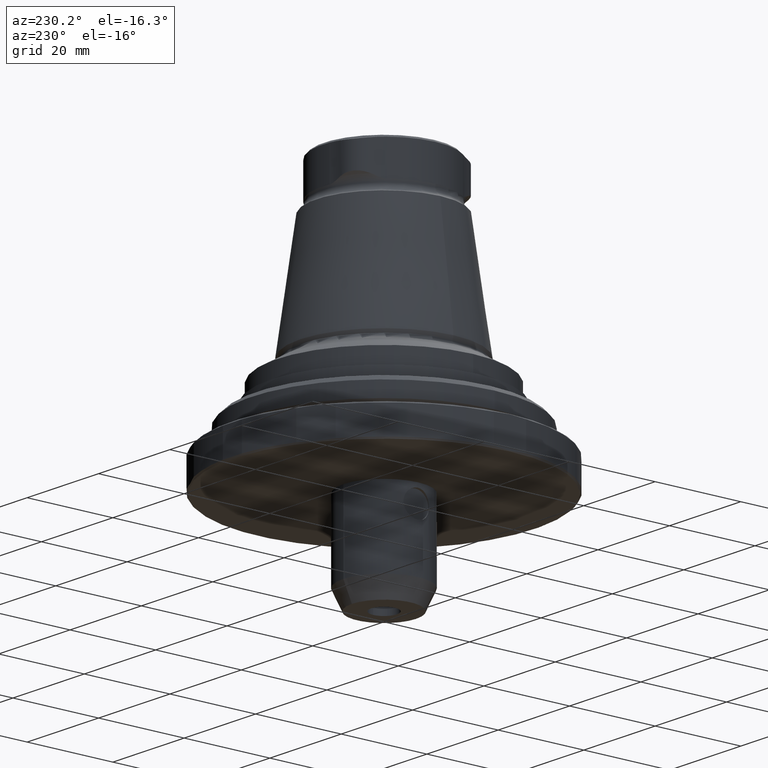
[diagram: clean part render]
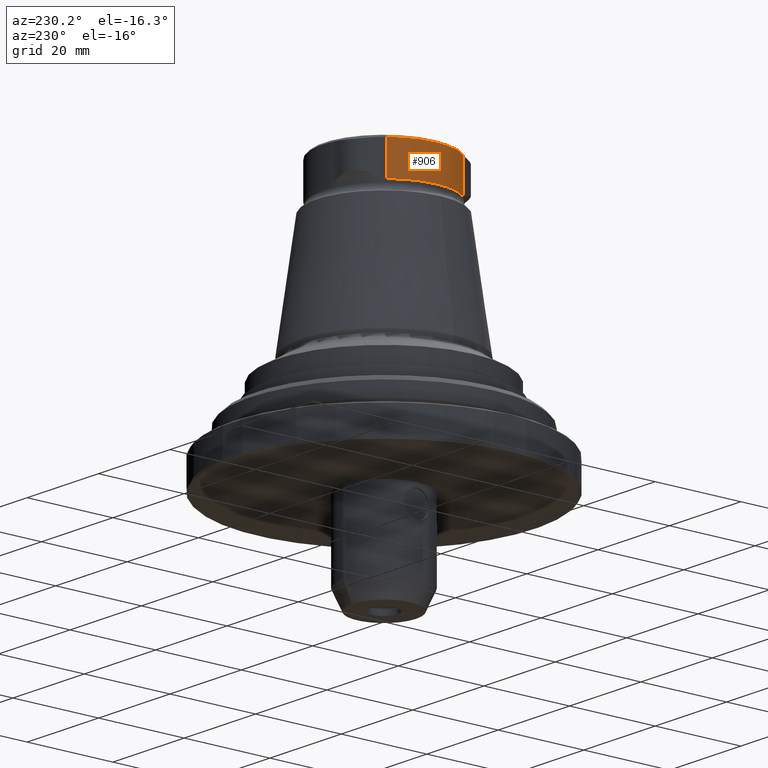
[diagram: same view with one face highlighted and labeled with its STEP entity id]
A machine part, auxiliary view. The second image highlights one B-rep face of the part: STEP entity #906.
In plain terms, the highlighted cylindrical surface (partial cylindrical patch) has radius 14.5 mm, axis along (0, 0, 1).
Its self-contained STEP definition (entity closure, byte-faithful):
#25=LINE('',#1473,#53);
#26=LINE('',#1475,#54);
#53=VECTOR('',#1143,1000.);
#54=VECTOR('',#1144,1000.);
#123=CIRCLE('',#993,14.5);
#126=CIRCLE('',#998,14.5);
#199=ORIENTED_EDGE('',*,*,#442,.T.);
#200=ORIENTED_EDGE('',*,*,#436,.T.);
#201=ORIENTED_EDGE('',*,*,#443,.F.);
#202=ORIENTED_EDGE('',*,*,#444,.F.);
#436=EDGE_CURVE('',#553,#560,#123,.T.);
#442=EDGE_CURVE('',#564,#553,#25,.T.);
#443=EDGE_CURVE('',#565,#560,#26,.T.);
#444=EDGE_CURVE('',#564,#565,#126,.T.);
#553=VERTEX_POINT('',#1414);
#560=VERTEX_POINT('',#1451);
#564=VERTEX_POINT('',#1474);
#565=VERTEX_POINT('',#1476);
#693=EDGE_LOOP('',(#199,#200,#201,#202));
#789=FACE_BOUND('',#693,.T.);
#870=CYLINDRICAL_SURFACE('',#997,14.5);
#906=ADVANCED_FACE('',(#789),#870,.T.);
#993=AXIS2_PLACEMENT_3D('',#1453,#1133,#1134);
#997=AXIS2_PLACEMENT_3D('',#1472,#1141,#1142);
#998=AXIS2_PLACEMENT_3D('',#1477,#1145,#1146);
#1133=DIRECTION('',(-4.38328612912168E-16,-8.51929322185263E-24,-1.));
#1134=DIRECTION('',(-1.,9.77164313006873E-16,4.38328610599545E-16));
#1141=DIRECTION('',(5.47430718319515E-16,8.51929311524195E-24,1.));
#1142=DIRECTION('',(1.,-9.77164313006873E-16,-5.47430716006892E-16));
#1143=DIRECTION('',(5.47430718319515E-16,8.51929311524195E-24,1.));
#1144=DIRECTION('',(5.47430718319515E-16,8.51929311524195E-24,1.));
#1145=DIRECTION('',(-4.38328612912168E-16,-8.51929322185263E-24,-1.));
#1146=DIRECTION('',(-1.,9.77164313006873E-16,4.38328610599545E-16));
#1414=CARTESIAN_POINT('',(-11.4297801108245,-8.92245070696412,54.5));
#1451=CARTESIAN_POINT('',(-11.4297801108242,8.92245070696371,54.5));
#1453=CARTESIAN_POINT('',(-6.38744814161624E-14,-9.81645347040286E-14,54.5));
#1472=CARTESIAN_POINT('',(-1.20929723120816E-13,-9.81645355339204E-14,-42.9132268899356));
#1473=CARTESIAN_POINT('',(-11.4297801108245,-8.92245070696412,-42.9132268899356));
#1474=CARTESIAN_POINT('',(-11.4297801108245,-8.92245070696412,46.6780044888597));
#1475=CARTESIAN_POINT('',(-11.4297801108242,8.92245070696371,-42.9132268899356));
#1476=CARTESIAN_POINT('',(-11.4297801108242,8.92245070696371,46.6780044888626));
#1477=CARTESIAN_POINT('',(-6.82790461535123E-14,-9.81645347706665E-14,46.6780044888626));